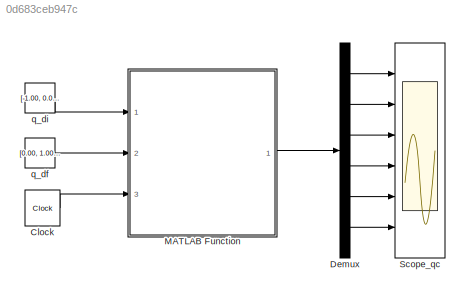
MODEL slx_0d683ceb947c
KIND model
CONFIG AbsTol = auto
CONFIG FixedStep = auto
CONFIG MaxStep = auto
CONFIG MinStep = auto
CONFIG RelTol = 1e-3
CONFIG SampleTimeConstraint = Unconstrained
CONFIG Solver = VariableStepAuto
CONFIG SolverMode = Auto
CONFIG SolverName = VariableStepAuto
CONFIG StartTime = 0.0
CONFIG StopTime = 500
BLOCK [Clock] Clock
  Decimation = 1
BLOCK [Demux] Demux
  DisplayOption = bar
  Outputs = 6
  Ports = [1, 6]
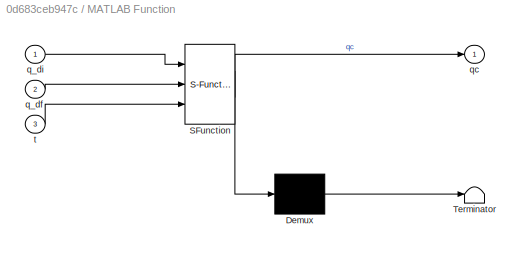
BLOCK [SubSystem] MATLAB Function
  ErrorFcn = Stateflow.Translate.translate
  PermitHierarchicalResolution = ExplicitOnly
  Ports = [3, 1]
  RequestExecContextInheritance = off
  SFBlockType = MATLAB Function
  TreatAsAtomicUnit = on
  Variant = off
BLOCK [Demux] MATLAB Function/ Demux 
  Outputs = 1
  Ports = [1, 1]
BLOCK [S-Function] MATLAB Function/ SFunction 
  EnableBusSupport = on
  FunctionName = sf_sfun
  PortCounts = [3 2]
  Ports = [3, 2]
  SFunctionDeploymentMode = off
  Tag = Stateflow S-Function SimulinkQ19 2
BLOCK [Terminator] MATLAB Function/ Terminator 
BLOCK [Inport] MATLAB Function/q_df
  IconDisplay = Port number
  Port = 2
BLOCK [Inport] MATLAB Function/q_di
  IconDisplay = Port number
BLOCK [Outport] MATLAB Function/qc
  IconDisplay = Port number
BLOCK [Inport] MATLAB Function/t
  IconDisplay = Port number
  Port = 3
BLOCK [Scope] Scope_qc
  NumInputPorts = 6
  Ports = [6]
  ScopeSpecificationString = Simulink.scopes.TimeScopeBlockCfg('CurrentConfiguration', extmgr.ConfigurationSet(extmgr.Configuration('Core','General UI',true,'DisplayFullSourceName',true),extmgr.Configuration('Core','Source UI',true),extmgr.Configuration('Sources','WiredSimulink',true),extmgr.Configuration('Visuals','Time Domain',true,'TimeAxisLabels','All','SerializedDisplays',{struct('MinYLimReal','-1.125','MaxYLimReal','0.1...<+4884ch>
BLOCK [Constant] q_df
  Value = [0.00, 1.00, 0.00, 0.00, 0.00, 0.00]
BLOCK [Constant] q_di
  Value = [-1.00, 0.00, -1.00, -1.00, -1.00, -1.00]
LINE Clock:1 -> MATLAB Function:3
LINE Demux:1 -> Scope_qc:1
LINE Demux:2 -> Scope_qc:2
LINE Demux:3 -> Scope_qc:3
LINE Demux:4 -> Scope_qc:4
LINE Demux:5 -> Scope_qc:5
LINE Demux:6 -> Scope_qc:6
LINE MATLAB Function:1 -> Demux:1
LINE q_df:1 -> MATLAB Function:2
LINE q_di:1 -> MATLAB Function:1
CHART MATLAB Function states=1 transitions=1
  STATE_LABEL 'eML_blk_kernel()'
  STATE_LABEL 'SCRIPT:\nfunction qc = GenTraj(q_di, q_df, t)\n    tf = 500;\n    D = q_df - q_di;\n    r = 10*(t/tf)^3 -15*(t/tf)^4 + 6*(t/tf)^5;\n    qc = q_di + r*D\nend'
